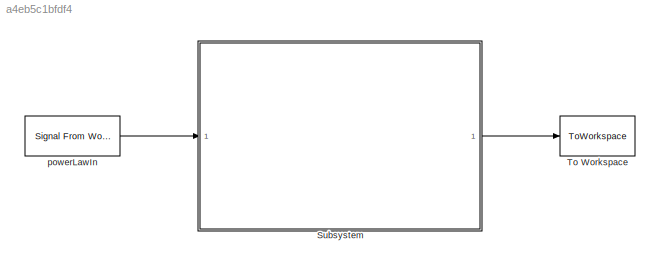
MODEL slx_a4eb5c1bfdf4
KIND model
CONFIG AbsTol = auto
CONFIG EnableMultiTasking = off
CONFIG FixedStep = auto
CONFIG InitFcn = Power_Law_Test_Parameters\n
CONFIG MaxStep = auto
CONFIG MinStep = auto
CONFIG RelTol = 1e-3
CONFIG SampleTimeConstraint = Unconstrained
CONFIG Solver = VariableStepAuto
CONFIG SolverName = VariableStepAuto
CONFIG StartTime = 0.0
CONFIG StopFcn = Verify_Power_Law_Adaptation
CONFIG StopTime = testtime
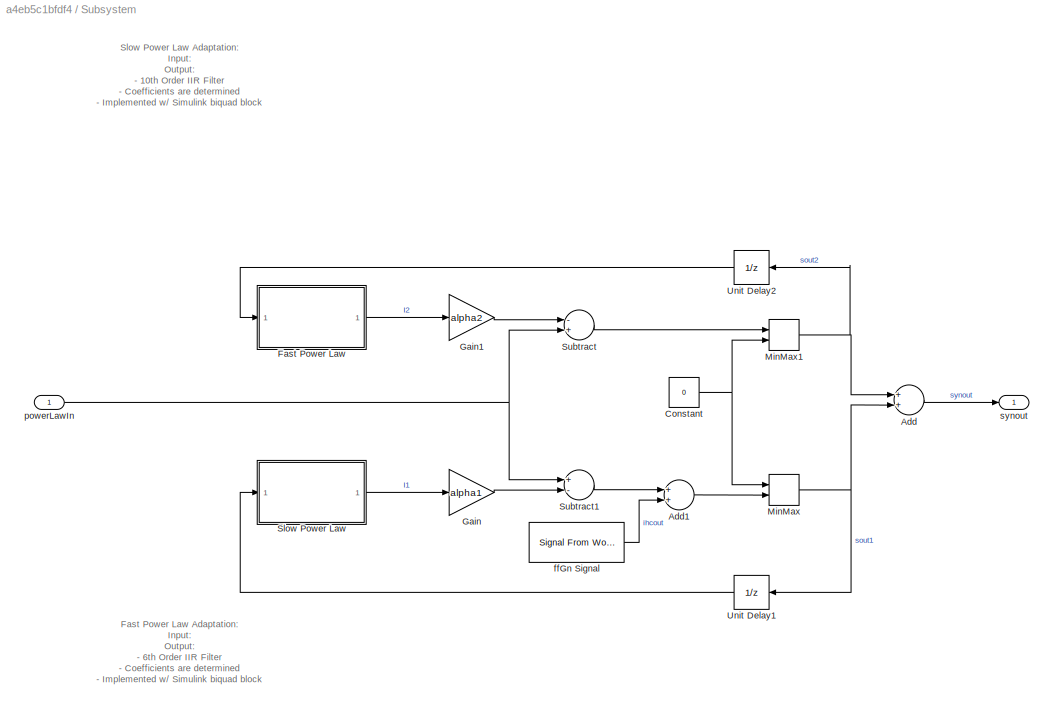
BLOCK [SubSystem] Subsystem
  Ports = [1, 1]
  RequestExecContextInheritance = off
  ShowPortLabels = none
BLOCK [Sum] Subsystem/Add
  InputSameDT = off
  OutDataTypeStr = Inherit: Inherit via internal rule
  Ports = [2, 1]
  SaturateOnIntegerOverflow = off
BLOCK [Sum] Subsystem/Add1
  InputSameDT = off
  OutDataTypeStr = Inherit: Inherit via internal rule
  Ports = [2, 1]
  SaturateOnIntegerOverflow = off
BLOCK [Constant] Subsystem/Constant
  SampleTime = -1
  Value = 0
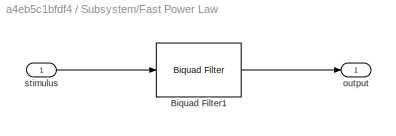
BLOCK [SubSystem] Subsystem/Fast Power Law
  Ports = [1, 1]
  RequestExecContextInheritance = off
  ShowPortLabels = none
BLOCK [Reference] Subsystem/Fast Power Law/Biquad Filter1  REF=dsparch4/Biquad Filter
  Ports = [1, 1]
  SourceBlock = dsparch4/Biquad Filter
  SourceProductBaseCode = DS
  SourceProductName = DSP System Toolbox
  SourceType = Biquad Filter
  UserDataPersistent = on
BLOCK [Outport] Subsystem/Fast Power Law/output
  IconDisplay = Port number
BLOCK [Inport] Subsystem/Fast Power Law/stimulus
  IconDisplay = Port number
BLOCK [Gain] Subsystem/Gain
  Gain = alpha1
  OutDataTypeStr = Inherit: Inherit via internal rule
  ParamDataTypeStr = Inherit: Inherit via internal rule
  SaturateOnIntegerOverflow = off
BLOCK [Gain] Subsystem/Gain1
  Gain = alpha2
  OutDataTypeStr = Inherit: Inherit via internal rule
  ParamDataTypeStr = Inherit: Inherit via internal rule
  SaturateOnIntegerOverflow = off
BLOCK [MinMax] Subsystem/MinMax
  Function = max
  InputSameDT = off
  Inputs = 2
  Ports = [2, 1]
  SaturateOnIntegerOverflow = off
BLOCK [MinMax] Subsystem/MinMax1
  Function = max
  InputSameDT = off
  Inputs = 2
  Ports = [2, 1]
  SaturateOnIntegerOverflow = off
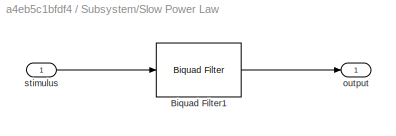
BLOCK [SubSystem] Subsystem/Slow Power Law
  Ports = [1, 1]
  RequestExecContextInheritance = off
  ShowPortLabels = none
BLOCK [Reference] Subsystem/Slow Power Law/Biquad Filter1  REF=dsparch4/Biquad Filter
  Ports = [1, 1]
  SourceBlock = dsparch4/Biquad Filter
  SourceProductBaseCode = DS
  SourceProductName = DSP System Toolbox
  SourceType = Biquad Filter
  UserDataPersistent = on
BLOCK [Outport] Subsystem/Slow Power Law/output
  IconDisplay = Port number
BLOCK [Inport] Subsystem/Slow Power Law/stimulus
  IconDisplay = Port number
BLOCK [Sum] Subsystem/Subtract
  InputSameDT = off
  Inputs = -+
  OutDataTypeStr = Inherit: Inherit via internal rule
  Ports = [2, 1]
  SaturateOnIntegerOverflow = off
BLOCK [Sum] Subsystem/Subtract1
  InputSameDT = off
  Inputs = +-
  OutDataTypeStr = Inherit: Inherit via internal rule
  Ports = [2, 1]
  SaturateOnIntegerOverflow = off
BLOCK [UnitDelay] Subsystem/Unit Delay1
  HasFrameUpgradeWarning = on
  SampleTime = -1
BLOCK [UnitDelay] Subsystem/Unit Delay2
  HasFrameUpgradeWarning = on
  SampleTime = -1
BLOCK [Reference] Subsystem/ffGn Signal  REF=dspsrcs4/Signal From
Workspace
  Ports = [0, 1]
  SourceBlock = dspsrcs4/Signal From\nWorkspace
  SourceProductBaseCode = DS
  SourceProductName = DSP System Toolbox
  SourceType = Signal From Workspace
BLOCK [Inport] Subsystem/powerLawIn
  IconDisplay = Port number
BLOCK [Outport] Subsystem/synout
  IconDisplay = Port number
BLOCK [ToWorkspace] To Workspace
  MaxDataPoints = inf
  Ports = [1]
  SampleTime = -1
  Save2DSignal = 2-D array (concatenate along first dimension)
  VariableName = synout
BLOCK [Reference] powerLawIn   REF=dspsrcs4/Signal From
Workspace
  Ports = [0, 1]
  SourceBlock = dspsrcs4/Signal From\nWorkspace
  SourceProductBaseCode = DS
  SourceProductName = DSP System Toolbox
  SourceType = Signal From Workspace
ANNOTATION Subsystem: Fast Power Law Adaptation: Input : Output : - 6th Order IIR Filter - Coefficients are determined - Implemented w/ Simulink biquad block
ANNOTATION Subsystem: Slow Power Law Adaptation: Input : Output : - 10th Order IIR Filter - Coefficients are determined - Implemented w/ Simulink biquad block
LINE Subsystem/Add1:1 -> Subsystem/MinMax:2
LINE Subsystem/Add:1 -> Subsystem/synout:1
NET Subsystem/Constant:1 -> Subsystem/MinMax1:2, Subsystem/MinMax:1
LINE Subsystem/Fast Power Law/Biquad Filter1:1 -> Subsystem/Fast Power Law/output:1
LINE Subsystem/Fast Power Law/stimulus:1 -> Subsystem/Fast Power Law/Biquad Filter1:1
LINE Subsystem/Fast Power Law:1 -> Subsystem/Gain1:1
LINE Subsystem/Gain1:1 -> Subsystem/Subtract:1
LINE Subsystem/Gain:1 -> Subsystem/Subtract1:2
NET Subsystem/MinMax1:1 -> Subsystem/Add:1, Subsystem/Unit Delay2:1
NET Subsystem/MinMax:1 -> Subsystem/Add:2, Subsystem/Unit Delay1:1
LINE Subsystem/Slow Power Law/Biquad Filter1:1 -> Subsystem/Slow Power Law/output:1
LINE Subsystem/Slow Power Law/stimulus:1 -> Subsystem/Slow Power Law/Biquad Filter1:1
LINE Subsystem/Slow Power Law:1 -> Subsystem/Gain:1
LINE Subsystem/Subtract1:1 -> Subsystem/Add1:1
LINE Subsystem/Subtract:1 -> Subsystem/MinMax1:1
LINE Subsystem/Unit Delay1:1 -> Subsystem/Slow Power Law:1
LINE Subsystem/Unit Delay2:1 -> Subsystem/Fast Power Law:1
LINE Subsystem/ffGn Signal:1 -> Subsystem/Add1:2
NET Subsystem/powerLawIn:1 -> Subsystem/Subtract1:1, Subsystem/Subtract:2
LINE Subsystem:1 -> To Workspace:1
LINE powerLawIn :1 -> Subsystem:1
note: NET lines group one-source signal fan-out (src -> all destinations, sorted); 1:1 wires keep LINE
